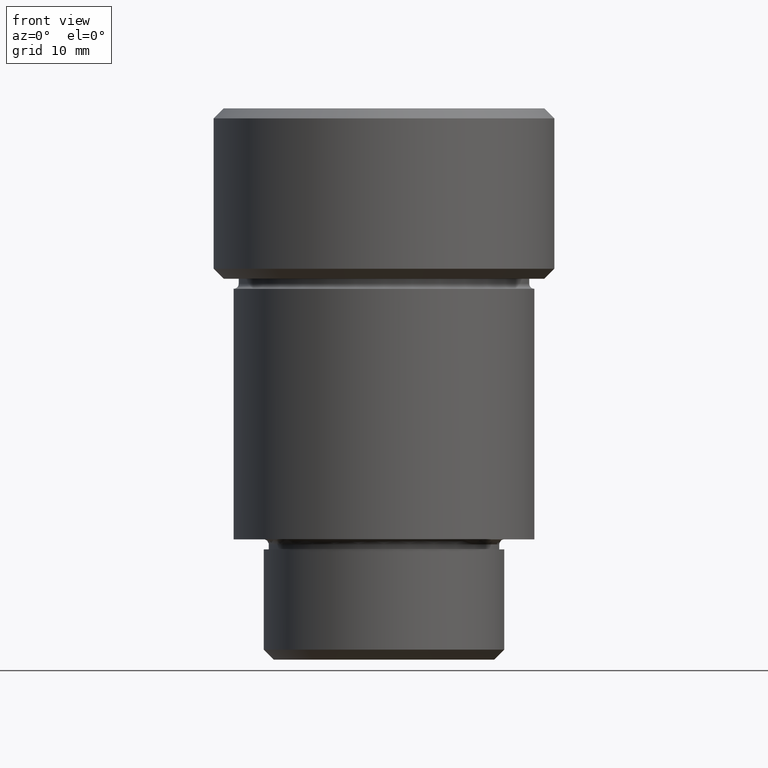
[diagram: clean part render]
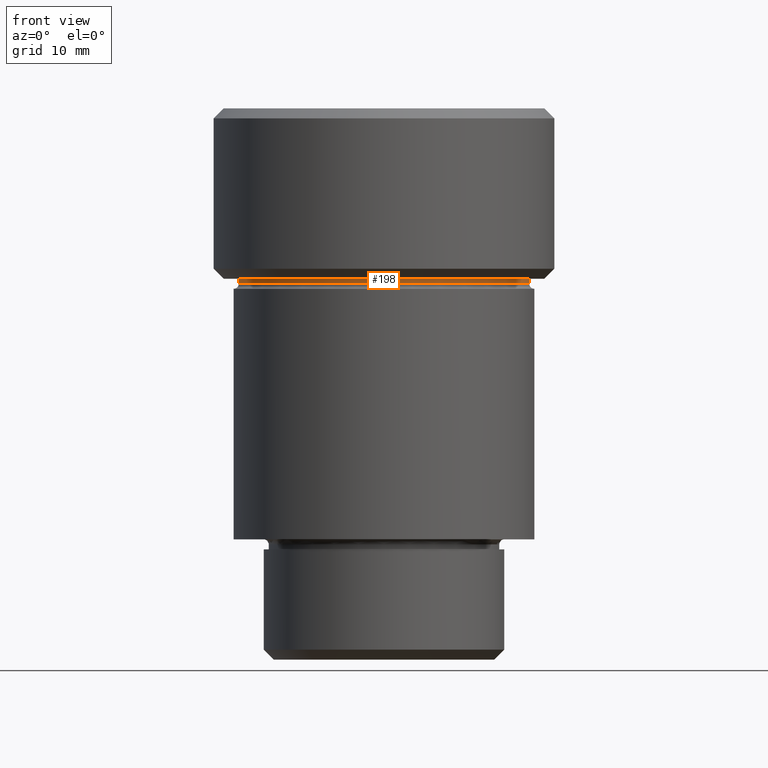
[diagram: same view with one face highlighted and labeled with its STEP entity id]
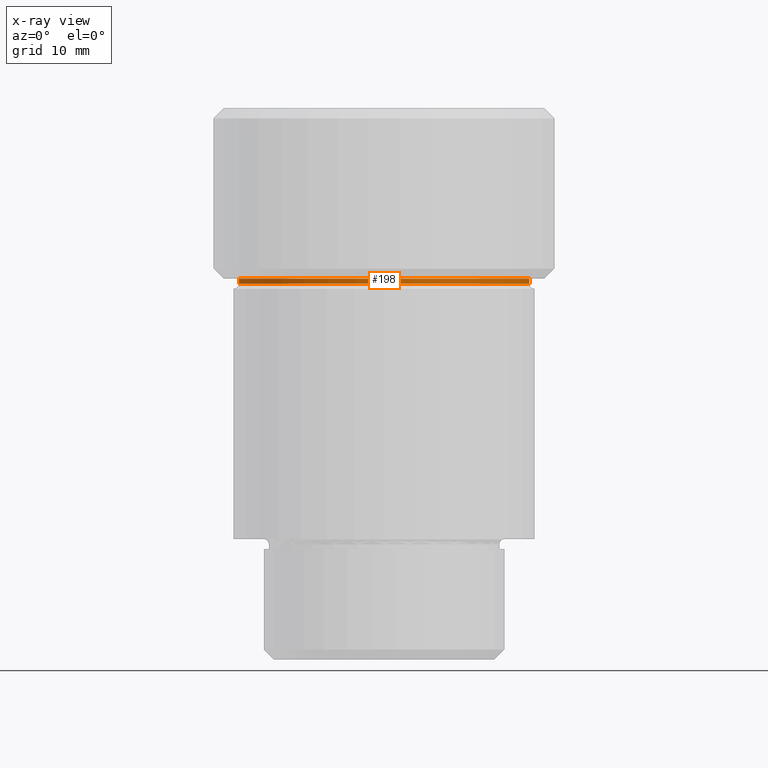
[diagram: x-ray of the same camera — body ghosted, the highlighted face saturated]
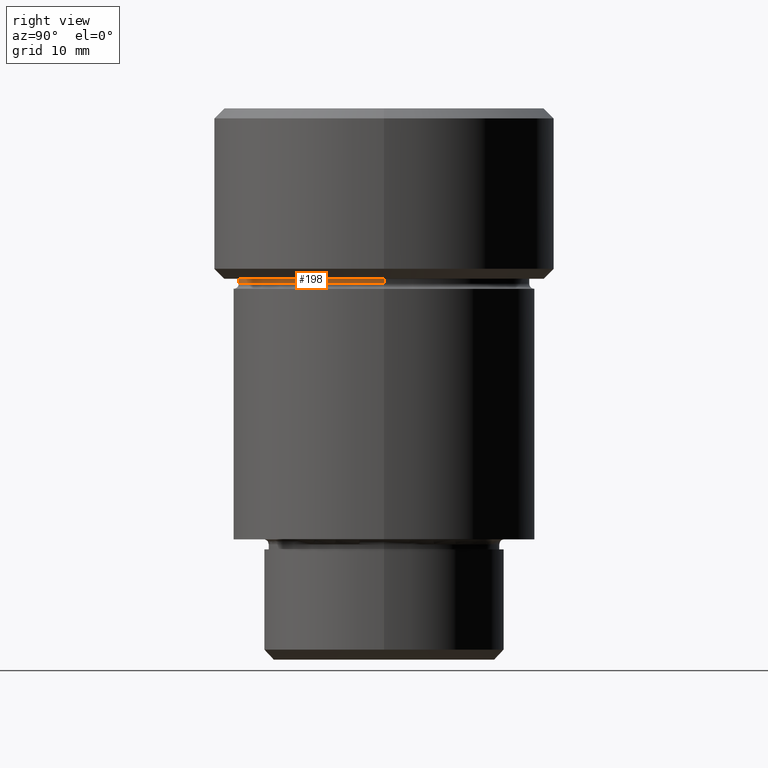
[diagram: same view with one face highlighted and labeled with its STEP entity id]
A machine part, front view. The second image highlights one B-rep face of the part: STEP entity #198.
The next image is the same camera in x-ray: the body ghosted, the highlighted face saturated — about 0% of this face is hidden behind the body in this view.
A second angle (right view) of the same face is appended — the face is thin or edge-on in the first view.
In plain terms, the highlighted cylindrical surface (partial cylindrical patch) has radius 14.5 mm, axis along (-0, -0, 1).
Its self-contained STEP definition (entity closure, byte-faithful):
#10 = DIRECTION ( 'NONE',  ( -0.000000000000000000, -0.000000000000000000, 1.000000000000000000 ) ) ;
#18 = EDGE_CURVE ( 'NONE', #225, #73, #270, .T. ) ;
#54 = CARTESIAN_POINT ( 'NONE',  ( 0.000000000000000000, 0.000000000000000000, -17.00000000000000000 ) ) ;
#73 = VERTEX_POINT ( 'NONE', #278 ) ;
#98 = DIRECTION ( 'NONE',  ( -0.000000000000000000, -0.000000000000000000, 1.000000000000000000 ) ) ;
#145 = VECTOR ( 'NONE', #98, 1000.000000000000000 ) ;
#174 = CYLINDRICAL_SURFACE ( 'NONE', #709, 14.49999999999999822 ) ;
#189 = LINE ( 'NONE', #424, #698 ) ;
#198 = ADVANCED_FACE ( 'NONE', ( #462 ), #174, .T. ) ;
#205 = CIRCLE ( 'NONE', #710, 14.49999999999999822 ) ;
#217 = VERTEX_POINT ( 'NONE', #598 ) ;
#225 = VERTEX_POINT ( 'NONE', #416 ) ;
#232 = VERTEX_POINT ( 'NONE', #342 ) ;
#270 = CIRCLE ( 'NONE', #781, 14.49999999999999822 ) ;
#278 = CARTESIAN_POINT ( 'NONE',  ( 14.49999999999999822, 0.000000000000000000, -17.49999999999999645 ) ) ;
#289 = CARTESIAN_POINT ( 'NONE',  ( 0.000000000000000000, 0.000000000000000000, 0.000000000000000000 ) ) ;
#300 = DIRECTION ( 'NONE',  ( 1.000000000000000000, 0.000000000000000000, 0.000000000000000000 ) ) ;
#320 = EDGE_LOOP ( 'NONE', ( #599, #379, #717, #455 ) ) ;
#329 = LINE ( 'NONE', #520, #145 ) ;
#342 = CARTESIAN_POINT ( 'NONE',  ( -14.49999999999999822, 1.775737858763662015E-15, -17.00000000000000000 ) ) ;
#379 = ORIENTED_EDGE ( 'NONE', *, *, #18, .T. ) ;
#416 = CARTESIAN_POINT ( 'NONE',  ( -14.49999999999999822, 1.775737858763662015E-15, -17.49999999999999645 ) ) ;
#424 = CARTESIAN_POINT ( 'NONE',  ( -14.49999999999999822, 1.775737858763662015E-15, 0.000000000000000000 ) ) ;
#452 = DIRECTION ( 'NONE',  ( 1.000000000000000000, 0.000000000000000000, 0.000000000000000000 ) ) ;
#455 = ORIENTED_EDGE ( 'NONE', *, *, #719, .F. ) ;
#462 = FACE_OUTER_BOUND ( 'NONE', #320, .T. ) ;
#520 = CARTESIAN_POINT ( 'NONE',  ( 14.49999999999999822, 0.000000000000000000, 0.000000000000000000 ) ) ;
#538 = DIRECTION ( 'NONE',  ( -0.000000000000000000, -0.000000000000000000, 1.000000000000000000 ) ) ;
#584 = EDGE_CURVE ( 'NONE', #225, #232, #189, .T. ) ;
#598 = CARTESIAN_POINT ( 'NONE',  ( 14.49999999999999822, 0.000000000000000000, -17.00000000000000000 ) ) ;
#599 = ORIENTED_EDGE ( 'NONE', *, *, #584, .F. ) ;
#636 = DIRECTION ( 'NONE',  ( -0.000000000000000000, -0.000000000000000000, 1.000000000000000000 ) ) ;
#639 = DIRECTION ( 'NONE',  ( -0.000000000000000000, -0.000000000000000000, 1.000000000000000000 ) ) ;
#679 = EDGE_CURVE ( 'NONE', #73, #217, #329, .T. ) ;
#698 = VECTOR ( 'NONE', #10, 1000.000000000000000 ) ;
#699 = DIRECTION ( 'NONE',  ( 1.000000000000000000, 0.000000000000000000, 0.000000000000000000 ) ) ;
#709 = AXIS2_PLACEMENT_3D ( 'NONE', #289, #639, #699 ) ;
#710 = AXIS2_PLACEMENT_3D ( 'NONE', #54, #538, #300 ) ;
#717 = ORIENTED_EDGE ( 'NONE', *, *, #679, .T. ) ;
#719 = EDGE_CURVE ( 'NONE', #232, #217, #205, .T. ) ;
#760 = CARTESIAN_POINT ( 'NONE',  ( 0.000000000000000000, 0.000000000000000000, -17.49999999999999645 ) ) ;
#781 = AXIS2_PLACEMENT_3D ( 'NONE', #760, #636, #452 ) ;